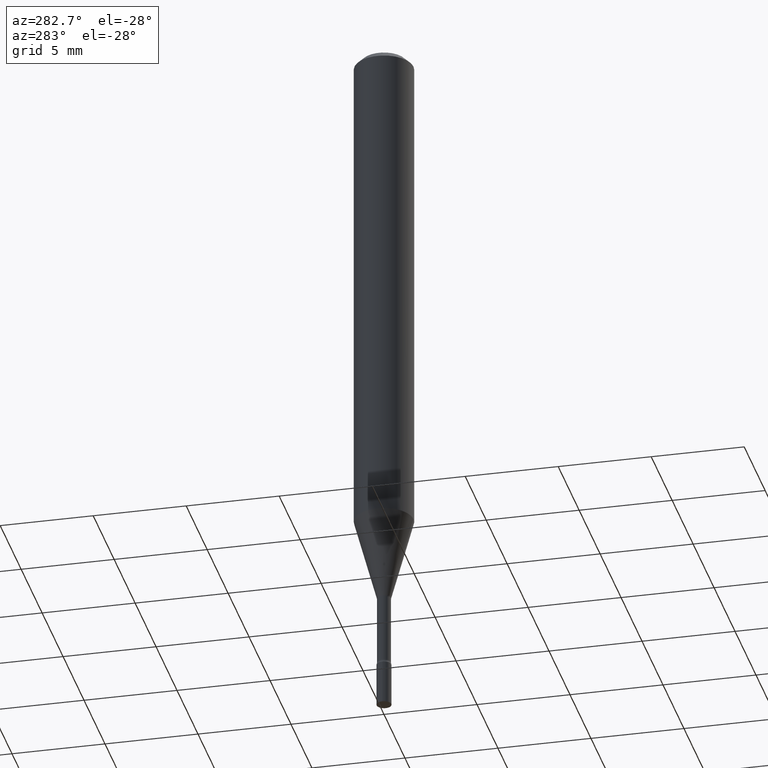
[diagram: clean part render]
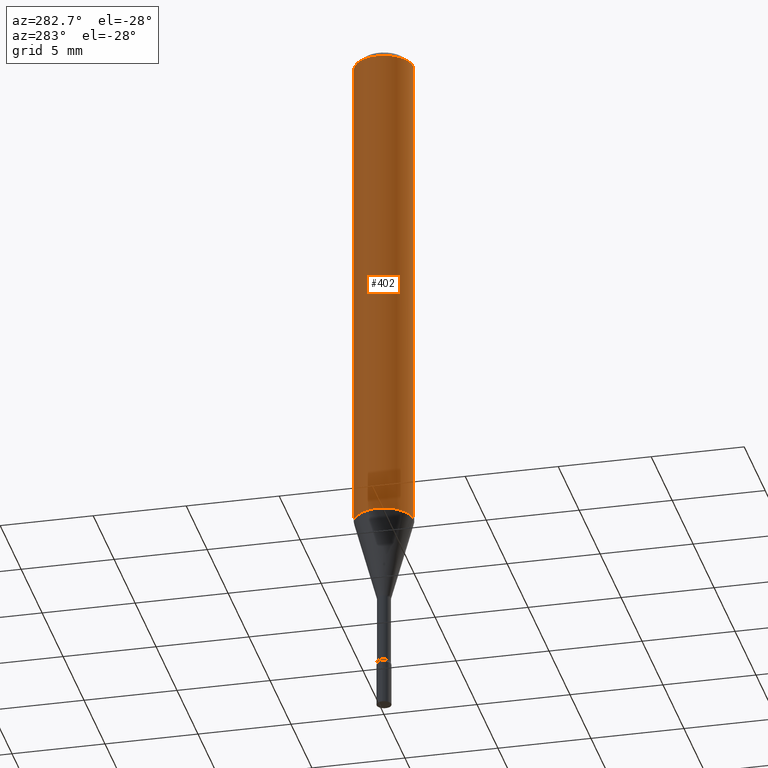
[diagram: same view with one face highlighted and labeled with its STEP entity id]
A machine part, auxiliary view. The second image highlights one B-rep face of the part: STEP entity #402.
In plain terms, the highlighted cylindrical surface (edge-blend (fillet) strip) has radius 1.5875 mm, axis along (-0, 0, 1).
Its self-contained STEP definition (entity closure, byte-faithful):
#9 = CARTESIAN_POINT ( 'NONE',  ( -4.364351673553655384E-16, -0.06250000000000376088, -1.073048163777072794 ) ) ;
#29 = AXIS2_PLACEMENT_3D ( 'NONE', #128, #406, #169 ) ;
#42 = CARTESIAN_POINT ( 'NONE',  ( 4.440892098500886486E-16, 0.06249999999999623218, -1.073048163777073238 ) ) ;
#60 = EDGE_CURVE ( 'NONE', #247, #289, #203, .T. ) ;
#88 = VECTOR ( 'NONE', #105, 39.37007874015748143 ) ;
#101 = ORIENTED_EDGE ( 'NONE', *, *, #384, .T. ) ;
#105 = DIRECTION ( 'NONE',  ( -2.445462235734121314E-29, 3.491490748102966351E-15, 1.000000000000000000 ) ) ;
#112 = EDGE_CURVE ( 'NONE', #117, #186, #358, .T. ) ;
#117 = VERTEX_POINT ( 'NONE', #42 ) ;
#126 = ORIENTED_EDGE ( 'NONE', *, *, #60, .F. ) ;
#128 = CARTESIAN_POINT ( 'NONE',  ( 2.624098761640674456E-29, -3.746537736096526862E-15, -1.073048163777073016 ) ) ;
#137 = LINE ( 'NONE', #400, #373 ) ;
#153 = DIRECTION ( 'NONE',  ( -2.445462235734121314E-29, 3.491490748102966351E-15, 1.000000000000000000 ) ) ;
#169 = DIRECTION ( 'NONE',  ( -6.982962677686265922E-15, -1.000000000000000000, 4.370956789862821150E-15 ) ) ;
#186 = VERTEX_POINT ( 'NONE', #9 ) ;
#203 = CIRCLE ( 'NONE', #213, 0.06250000000000000000 ) ;
#213 = AXIS2_PLACEMENT_3D ( 'NONE', #256, #369, #416 ) ;
#216 = ORIENTED_EDGE ( 'NONE', *, *, #310, .F. ) ;
#229 = CARTESIAN_POINT ( 'NONE',  ( 4.440892098500889444E-16, 0.06249999999999995143, -0.01500000000000024751 ) ) ;
#232 = DIRECTION ( 'NONE',  ( -6.982962677686265922E-15, -1.000000000000000000, 3.491490748102966351E-15 ) ) ;
#247 = VERTEX_POINT ( 'NONE', #229 ) ;
#256 = CARTESIAN_POINT ( 'NONE',  ( 3.668193353601189100E-31, -5.237236122154459880E-17, -0.01500000000000003067 ) ) ;
#273 = FACE_OUTER_BOUND ( 'NONE', #403, .T. ) ;
#277 = LINE ( 'NONE', #431, #88 ) ;
#289 = VERTEX_POINT ( 'NONE', #351 ) ;
#310 = EDGE_CURVE ( 'NONE', #117, #247, #137, .T. ) ;
#311 = DIRECTION ( 'NONE',  ( -2.445462235734121314E-29, 3.491490748102966351E-15, 1.000000000000000000 ) ) ;
#312 = ORIENTED_EDGE ( 'NONE', *, *, #112, .T. ) ;
#351 = CARTESIAN_POINT ( 'NONE',  ( -4.364351673553912750E-16, -0.06250000000000005551, -0.01499999999999981209 ) ) ;
#358 = CIRCLE ( 'NONE', #29, 0.06250000000000000000 ) ;
#361 = CARTESIAN_POINT ( 'NONE',  ( 0.000000000000000000, 0.000000000000000000, 0.000000000000000000 ) ) ;
#369 = DIRECTION ( 'NONE',  ( -2.445462235734121314E-29, 3.491490748102966351E-15, 1.000000000000000000 ) ) ;
#373 = VECTOR ( 'NONE', #311, 39.37007874015748143 ) ;
#384 = EDGE_CURVE ( 'NONE', #186, #289, #277, .T. ) ;
#400 = CARTESIAN_POINT ( 'NONE',  ( 4.440892098500625669E-16, 0.06250000000000000000, -2.182181717564353969E-16 ) ) ;
#402 = ADVANCED_FACE ( 'NONE', ( #273 ), #429, .T. ) ;
#403 = EDGE_LOOP ( 'NONE', ( #216, #312, #101, #126 ) ) ;
#406 = DIRECTION ( 'NONE',  ( -2.445462235734121314E-29, 3.491490748102966351E-15, 1.000000000000000000 ) ) ;
#416 = DIRECTION ( 'NONE',  ( -6.982962677686265922E-15, -1.000000000000000000, 3.483106191921935554E-15 ) ) ;
#429 = CYLINDRICAL_SURFACE ( 'NONE', #509, 0.06250000000000000000 ) ;
#431 = CARTESIAN_POINT ( 'NONE',  ( -4.364351673553916201E-16, -0.06250000000000000000, 2.182181717564353969E-16 ) ) ;
#509 = AXIS2_PLACEMENT_3D ( 'NONE', #361, #153, #232 ) ;